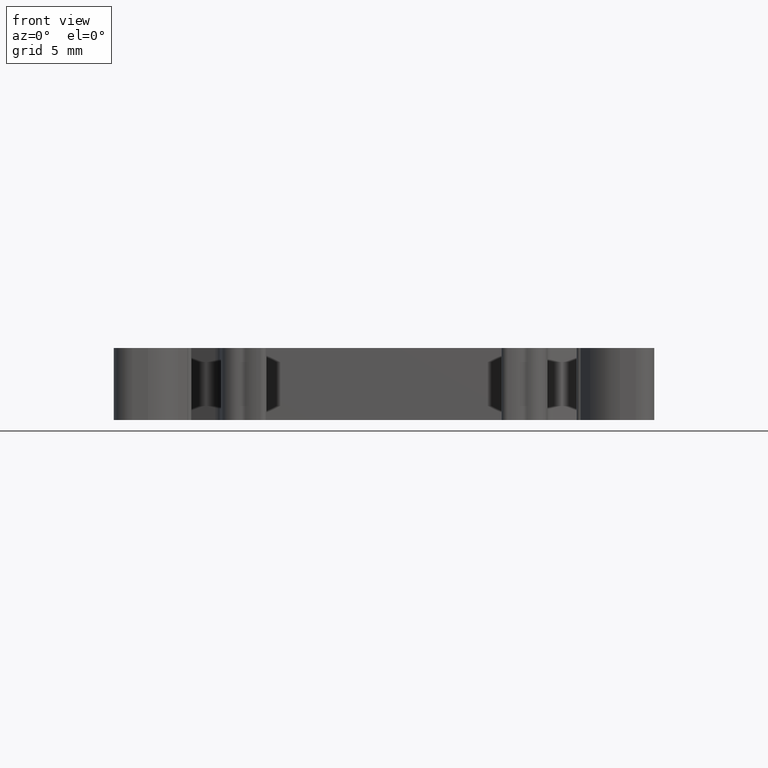
[diagram: clean part render]
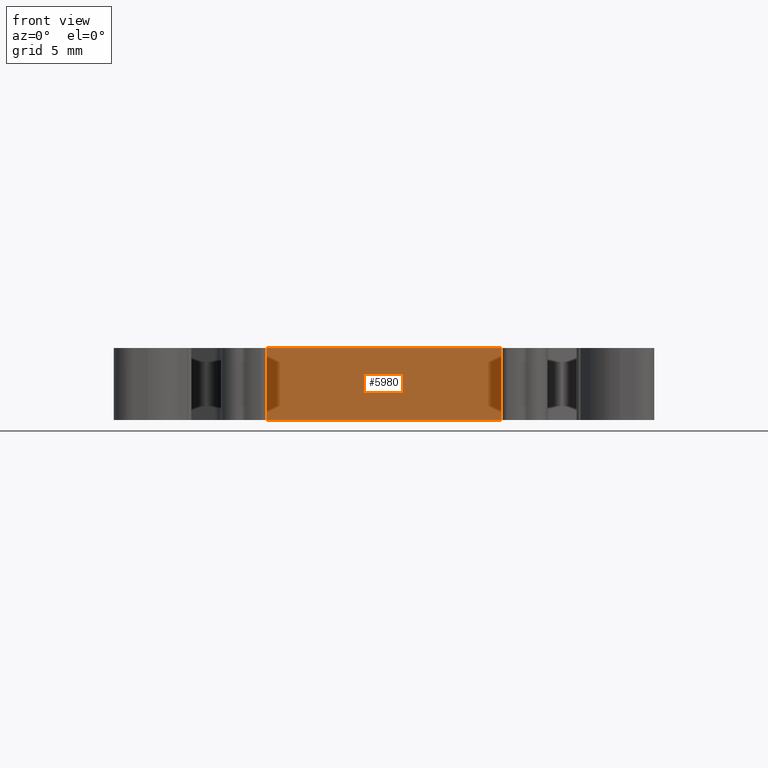
[diagram: same view with one face highlighted and labeled with its STEP entity id]
A machine part, front view. The second image highlights one B-rep face of the part: STEP entity #5980.
In plain terms, the highlighted planar face has unit normal (0, -1, 0).
Its self-contained STEP definition (entity closure, byte-faithful):
#167 = FACE_OUTER_BOUND ( 'NONE', #11486, .T. ) ;
#172 = DIRECTION ( 'NONE',  ( 0.0000000000000000000, -0.0000000000000000000, -1.000000000000000000 ) ) ;
#174 = PLANE ( 'NONE',  #1286 ) ;
#176 = CARTESIAN_POINT ( 'NONE',  ( 1469.978071433282100, 929.3334142198590400, -54.93784223741520400 ) ) ;
#182 = DIRECTION ( 'NONE',  ( 0.0000000000000000000, -1.000000000000000000, 0.0000000000000000000 ) ) ;
#1010 = LINE ( 'NONE', #1018, #1183 ) ;
#1018 = CARTESIAN_POINT ( 'NONE',  ( 1450.378077285344000, 929.3334142198590400, -54.93784223741520400 ) ) ;
#1037 = DIRECTION ( 'NONE',  ( 0.0000000000000000000, -0.0000000000000000000, -1.000000000000000000 ) ) ;
#1183 = VECTOR ( 'NONE', #1037, 1000.000000000000000 ) ;
#1286 = AXIS2_PLACEMENT_3D ( 'NONE', #176, #182, #172 ) ;
#4107 = ORIENTED_EDGE ( 'NONE', *, *, #5903, .T. ) ;
#5903 = EDGE_CURVE ( 'NONE', #11669, #11892, #1010, .T. ) ;
#5980 = ADVANCED_FACE ( 'NONE', ( #167 ), #174, .T. ) ;
#6859 = EDGE_CURVE ( 'NONE', #11735, #11669, #7745, .T. ) ;
#6983 = EDGE_CURVE ( 'NONE', #11877, #11892, #7216, .T. ) ;
#6984 = EDGE_CURVE ( 'NONE', #11877, #11735, #7234, .T. ) ;
#7216 = LINE ( 'NONE', #7236, #10376 ) ;
#7234 = LINE ( 'NONE', #7238, #10343 ) ;
#7235 = DIRECTION ( 'NONE',  ( -0.0000000000000000000, 0.0000000000000000000, 1.000000000000000000 ) ) ;
#7236 = CARTESIAN_POINT ( 'NONE',  ( 1443.419965517744000, 929.3334142198592600, -2.949999999999999700 ) ) ;
#7238 = CARTESIAN_POINT ( 'NONE',  ( 1469.978071433282100, 929.3334142198590400, -54.93784223741520400 ) ) ;
#7239 = DIRECTION ( 'NONE',  ( -1.000000000000000000, 0.0000000000000000000, -0.0000000000000000000 ) ) ;
#7745 = LINE ( 'NONE', #7760, #10228 ) ;
#7760 = CARTESIAN_POINT ( 'NONE',  ( 1469.978071433282100, 929.3334142198590400, 2.950000000000001100 ) ) ;
#7769 = DIRECTION ( 'NONE',  ( -1.000000000000000000, -0.0000000000000000000, -0.0000000000000000000 ) ) ;
#8141 = CARTESIAN_POINT ( 'NONE',  ( 1450.378077285344000, 929.3334142198590400, 2.950000000000001100 ) ) ;
#8179 = CARTESIAN_POINT ( 'NONE',  ( 1469.978071433282100, 929.3334142198590400, 2.950000000000001100 ) ) ;
#8302 = CARTESIAN_POINT ( 'NONE',  ( 1469.978071433282100, 929.3334142198591500, -2.950000000000001100 ) ) ;
#8316 = CARTESIAN_POINT ( 'NONE',  ( 1450.378077285344000, 929.3334142198591500, -2.950000000000001100 ) ) ;
#8945 = ORIENTED_EDGE ( 'NONE', *, *, #6983, .F. ) ;
#8973 = ORIENTED_EDGE ( 'NONE', *, *, #6984, .T. ) ;
#8974 = ORIENTED_EDGE ( 'NONE', *, *, #6859, .T. ) ;
#10228 = VECTOR ( 'NONE', #7769, 1000.000000000000000 ) ;
#10343 = VECTOR ( 'NONE', #7235, 1000.000000000000000 ) ;
#10376 = VECTOR ( 'NONE', #7239, 1000.000000000000000 ) ;
#11486 = EDGE_LOOP ( 'NONE', ( #4107, #8945, #8973, #8974 ) ) ;
#11669 = VERTEX_POINT ( 'NONE', #8141 ) ;
#11735 = VERTEX_POINT ( 'NONE', #8179 ) ;
#11877 = VERTEX_POINT ( 'NONE', #8302 ) ;
#11892 = VERTEX_POINT ( 'NONE', #8316 ) ;